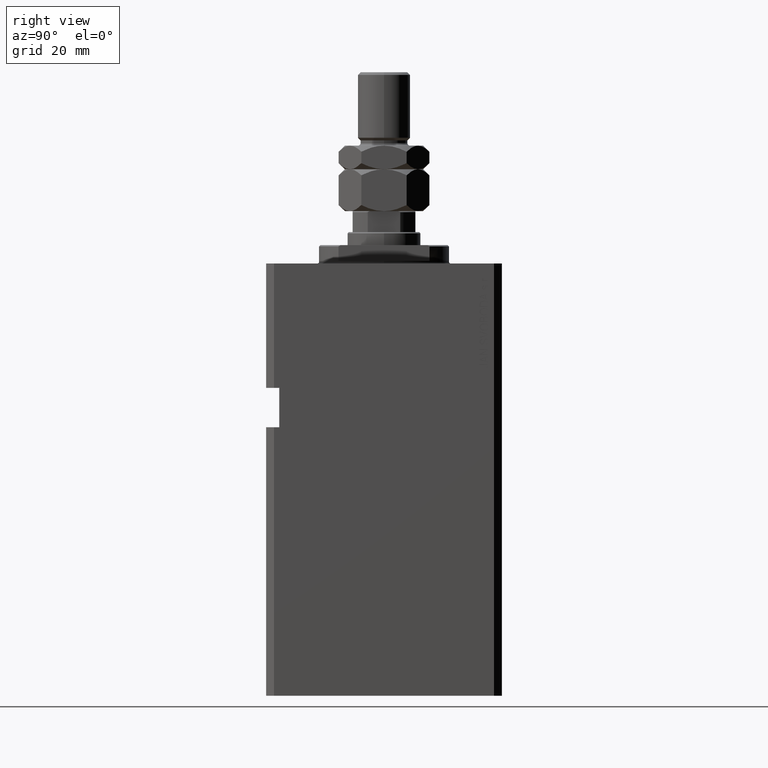
[diagram: clean part render]
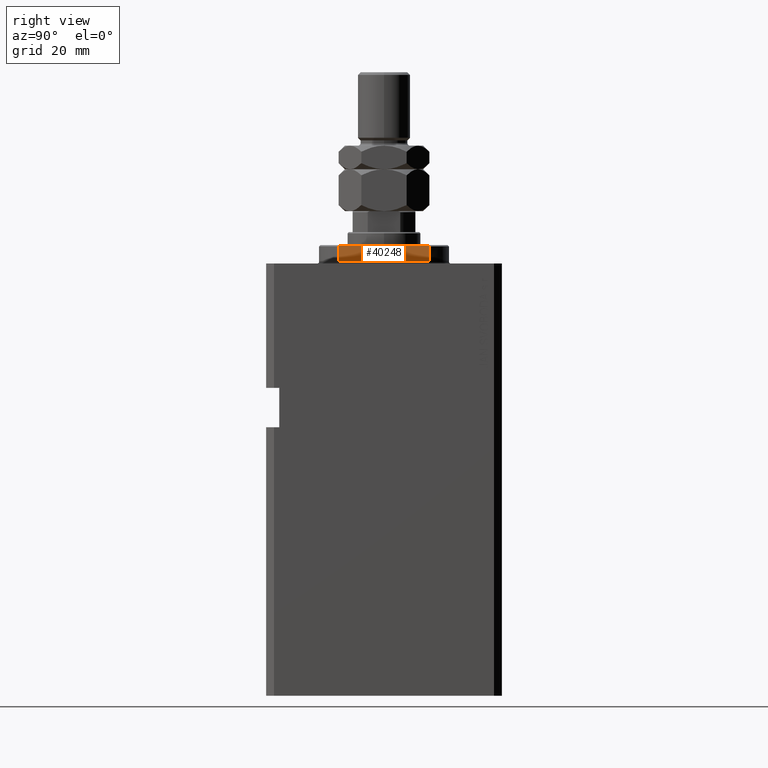
[diagram: same view with one face highlighted and labeled with its STEP entity id]
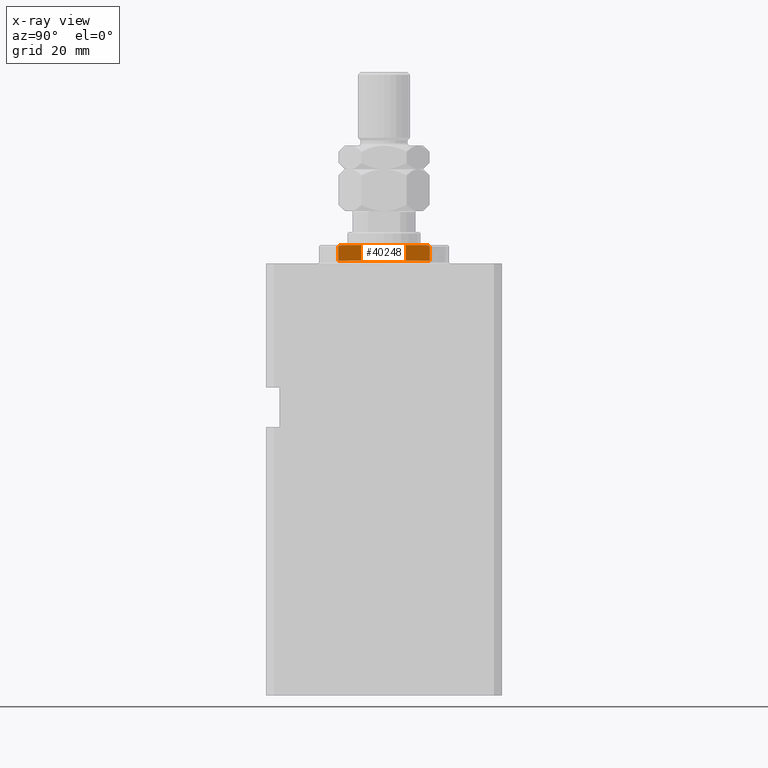
[diagram: x-ray of the same camera — body ghosted, the highlighted face saturated]
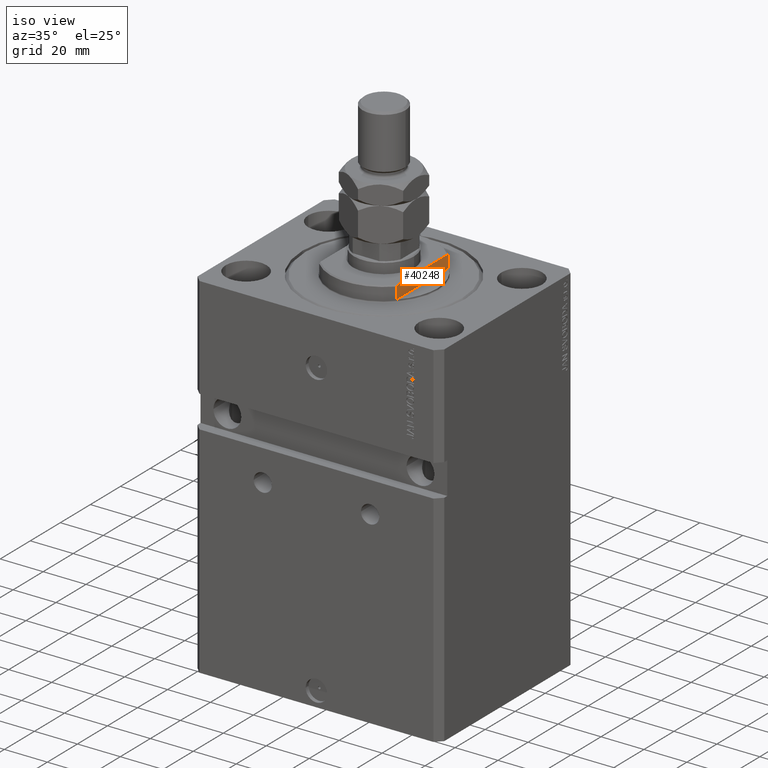
[diagram: same view with one face highlighted and labeled with its STEP entity id]
A machine part, right view. The second image highlights one B-rep face of the part: STEP entity #40248.
The next image is the same camera in x-ray: the body ghosted, the highlighted face saturated — about 0% of this face is hidden behind the body in this view.
A second angle (iso view) of the same face is appended — the face is thin or edge-on in the first view.
In plain terms, the highlighted planar face has unit normal (-1, 0, 0).
Its self-contained STEP definition (entity closure, byte-faithful):
#632 = VECTOR ( 'NONE', #6713, 1000.000000000000000 ) ;
#703 = LINE ( 'NONE', #30106, #16182 ) ;
#2488 = ORIENTED_EDGE ( 'NONE', *, *, #23933, .F. ) ;
#3632 = EDGE_LOOP ( 'NONE', ( #12542, #43366, #6984, #8176, #13189, #2488 ) ) ;
#3802 = CARTESIAN_POINT ( 'NONE',  ( -18.00000000000000000, -17.34935157289747920, -1.000000000000000000 ) ) ;
#4112 = DIRECTION ( 'NONE',  ( -0.000000000000000000, -1.000000000000000000, -0.000000000000000000 ) ) ;
#4766 = CARTESIAN_POINT ( 'NONE',  ( -18.00000000000000000, -16.62077013859462227, -7.000000000000000000 ) ) ;
#5595 = VERTEX_POINT ( 'NONE', #4766 ) ;
#6713 = DIRECTION ( 'NONE',  ( 0.000000000000000000, 0.000000000000000000, -1.000000000000000000 ) ) ;
#6984 = ORIENTED_EDGE ( 'NONE', *, *, #17046, .T. ) ;
#7064 = AXIS2_PLACEMENT_3D ( 'NONE', #19400, #41012, #44906 ) ;
#7145 = CARTESIAN_POINT ( 'NONE',  ( -18.00000000000000000, 16.62077013859462227, -7.000000000000000000 ) ) ;
#7709 = CARTESIAN_POINT ( 'NONE',  ( -18.00000000000000000, -17.10749533145902745, -6.667841958512572553 ) ) ;
#7943 = CARTESIAN_POINT ( 'NONE',  ( -18.00000000000000000, -16.62077013859462227, -7.000000000000000000 ) ) ;
#8176 = ORIENTED_EDGE ( 'NONE', *, *, #43803, .F. ) ;
#8861 = DIRECTION ( 'NONE',  ( -0.000000000000000000, -1.000000000000000000, -0.000000000000000000 ) ) ;
#10792 = EDGE_CURVE ( 'NONE', #25068, #37279, #41321, .T. ) ;
#11441 = CARTESIAN_POINT ( 'NONE',  ( -18.00000000000000000, 16.86453887646376515, -6.834627585342919254 ) ) ;
#12542 = ORIENTED_EDGE ( 'NONE', *, *, #10792, .T. ) ;
#13189 = ORIENTED_EDGE ( 'NONE', *, *, #33911, .F. ) ;
#15788 = CARTESIAN_POINT ( 'NONE',  ( -18.00000000000000000, 17.10737464676705955, -6.667925710558589181 ) ) ;
#15932 = CARTESIAN_POINT ( 'NONE',  ( -18.00000000000000000, -17.34935157289747920, -6.499999999999956479 ) ) ;
#16182 = VECTOR ( 'NONE', #4112, 1000.000000000000000 ) ;
#17046 = EDGE_CURVE ( 'NONE', #5595, #45868, #31887, .T. ) ;
#17799 = CARTESIAN_POINT ( 'NONE',  ( -18.00000000000000000, -17.34935157289747920, -6.499999999999956479 ) ) ;
#19152 = CARTESIAN_POINT ( 'NONE',  ( -18.00000000000000000, 17.34935157289747920, -7.000000000000000000 ) ) ;
#19153 = FACE_OUTER_BOUND ( 'NONE', #3632, .T. ) ;
#19400 = CARTESIAN_POINT ( 'NONE',  ( -18.00000000000000000, -41.24318125460256113, -1.000000000000000000 ) ) ;
#20279 = LINE ( 'NONE', #46255, #34614 ) ;
#22774 = CARTESIAN_POINT ( 'NONE',  ( -18.00000000000000000, -16.86466398118529497, -6.834542714452327417 ) ) ;
#23535 = EDGE_CURVE ( 'NONE', #37279, #5595, #20279, .T. ) ;
#23933 = EDGE_CURVE ( 'NONE', #25068, #38365, #44905, .T. ) ;
#25068 = VERTEX_POINT ( 'NONE', #43902 ) ;
#26261 = CARTESIAN_POINT ( 'NONE',  ( -18.00000000000000000, 16.62077013859462227, -7.000000000000000000 ) ) ;
#29991 = VERTEX_POINT ( 'NONE', #3802 ) ;
#30106 = CARTESIAN_POINT ( 'NONE',  ( -18.00000000000000000, -41.24318125460256113, -1.000000000000000000 ) ) ;
#30368 = CARTESIAN_POINT ( 'NONE',  ( -18.00000000000000000, 17.34935157289748986, -6.499999999999965361 ) ) ;
#31887 = B_SPLINE_CURVE_WITH_KNOTS ( 'NONE', 3,
 ( #7943, #22774, #7709, #15932 ),
 .UNSPECIFIED., .F., .F.,
 ( 4, 4 ),
 ( 0.08262823419570358707, 0.08350100171199341392 ),
 .UNSPECIFIED. ) ;
#32713 = CARTESIAN_POINT ( 'NONE',  ( -18.00000000000000000, -17.34935157289747920, -7.000000000000000000 ) ) ;
#33109 = CARTESIAN_POINT ( 'NONE',  ( -18.00000000000000000, 17.34935157289747920, -1.000000000000000000 ) ) ;
#33734 = PLANE ( 'NONE',  #7064 ) ;
#33911 = EDGE_CURVE ( 'NONE', #38365, #29991, #703, .T. ) ;
#34614 = VECTOR ( 'NONE', #8861, 1000.000000000000000 ) ;
#37279 = VERTEX_POINT ( 'NONE', #7145 ) ;
#37609 = DIRECTION ( 'NONE',  ( -0.000000000000000000, -0.000000000000000000, 1.000000000000000000 ) ) ;
#38365 = VERTEX_POINT ( 'NONE', #33109 ) ;
#38498 = VECTOR ( 'NONE', #37609, 1000.000000000000000 ) ;
#39993 = LINE ( 'NONE', #32713, #632 ) ;
#40248 = ADVANCED_FACE ( 'NONE', ( #19153 ), #33734, .F. ) ;
#41012 = DIRECTION ( 'NONE',  ( 1.000000000000000000, 0.000000000000000000, 0.000000000000000000 ) ) ;
#41321 = B_SPLINE_CURVE_WITH_KNOTS ( 'NONE', 3,
 ( #30368, #15788, #11441, #26261 ),
 .UNSPECIFIED., .F., .F.,
 ( 4, 4 ),
 ( 0.04589228951331350559, 0.04678015196826825622 ),
 .UNSPECIFIED. ) ;
#43366 = ORIENTED_EDGE ( 'NONE', *, *, #23535, .T. ) ;
#43803 = EDGE_CURVE ( 'NONE', #29991, #45868, #39993, .T. ) ;
#43902 = CARTESIAN_POINT ( 'NONE',  ( -18.00000000000000000, 17.34935157289748986, -6.499999999999965361 ) ) ;
#44905 = LINE ( 'NONE', #19152, #38498 ) ;
#44906 = DIRECTION ( 'NONE',  ( 0.000000000000000000, 0.000000000000000000, -1.000000000000000000 ) ) ;
#45868 = VERTEX_POINT ( 'NONE', #17799 ) ;
#46255 = CARTESIAN_POINT ( 'NONE',  ( -18.00000000000000000, -41.24318125460256113, -7.000000000000000000 ) ) ;